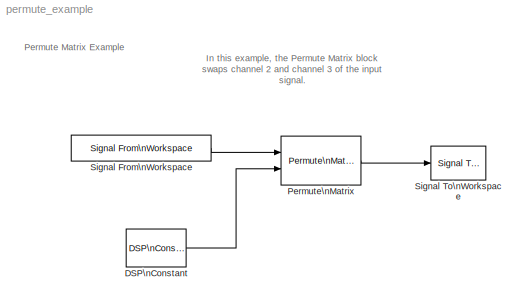
MODEL permute_example
KIND model
CONFIG AbsTol = auto
CONFIG FixedStep = auto
CONFIG MaxStep = auto
CONFIG MinStep = auto
CONFIG RelTol = 1e-3
CONFIG Solver = ode45
CONFIG SolverMode = Auto
CONFIG StartTime = 0.0
CONFIG StopTime = 10.0
BLOCK [Reference] DSP\nConstant  REF=dspsrcs4/DSP\nConstant
  FramebasedOutput = -inf
  InterpretAs1D = -inf
  Ports = [0, 1]
  SampleMode = Discrete
  SourceBlock = dspsrcs4/DSP\nConstant
  SourceType = DSP Constant
  Ts = -inf
  Value = [1 3 2]
  additionalParams = off
  allowOverrides = on
  continuousOutput = Sample-based
  dataType = Inherit from 'Constant value'
  discreteOutput = Frame-based
  fracBitsMode = Best precision
  framePeriod = 4
  numFracBits = 15
  sampTime = 1
  udDataType = sfix(16)
  wordLen = 16
BLOCK [Reference] Permute\nMatrix  REF=dspmtrx3/Permute\nMatrix
  Ports = [2, 1]
  SourceBlock = dspmtrx3/Permute\nMatrix
  SourceType = Permute Matrix
  ZeroOneIdxMode = One-based
  checkDims = off
  errmode = Clip Index
  mode = Columns
BLOCK [Reference] Signal From\nWorkspace  REF=dspsrcs4/Signal From\nWorkspace
  OutputAfterFinalValue = Setting to zero
  Ports = [0, 1]
  SourceBlock = dspsrcs4/Signal From\nWorkspace
  SourceType = Signal From Workspace
  Ts = 1
  X = [1:10;-1:-1:-10;5*ones(1,10)]'
  nsamps = 4
BLOCK [Reference] Signal To\nWorkspace  REF=dspsnks4/Signal To\nWorkspace
  Decimation = 1
  FrameMode = Concatenate frames (2-D array)
  MaxDataPoints = inf
  Ports = [1]
  SourceBlock = dspsnks4/Signal To\nWorkspace
  SourceType = Signal To Workspace
  VariableName = yout
ANNOTATION (root): In this example, the Permute Matrix block \nswaps channel 2 and channel 3 of the input \nsignal.
ANNOTATION (root): Permute Matrix Example
LINE DSP\nConstant:1 -> Permute\nMatrix:2
LINE Permute\nMatrix:1 -> Signal To\nWorkspace:1
LINE Signal From\nWorkspace:1 -> Permute\nMatrix:1
